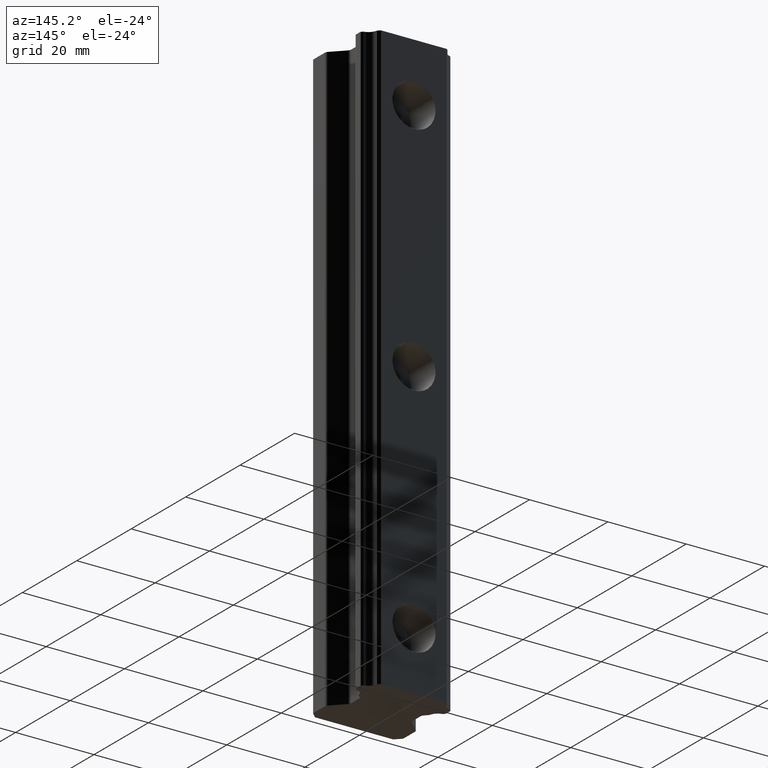
[diagram: clean part render]
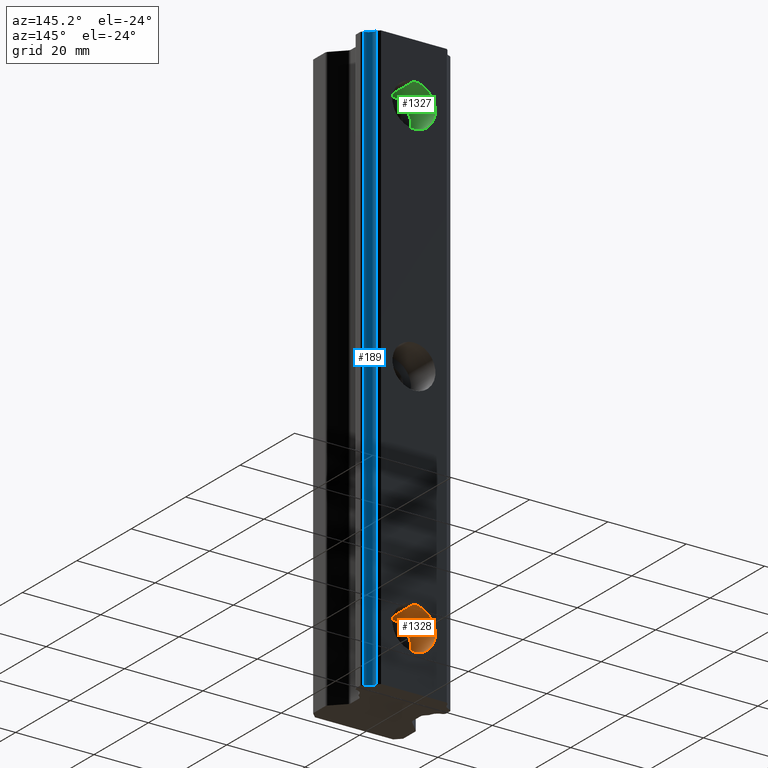
[diagram: same view with three faces highlighted in distinct colors, each labeled with its STEP entity id]
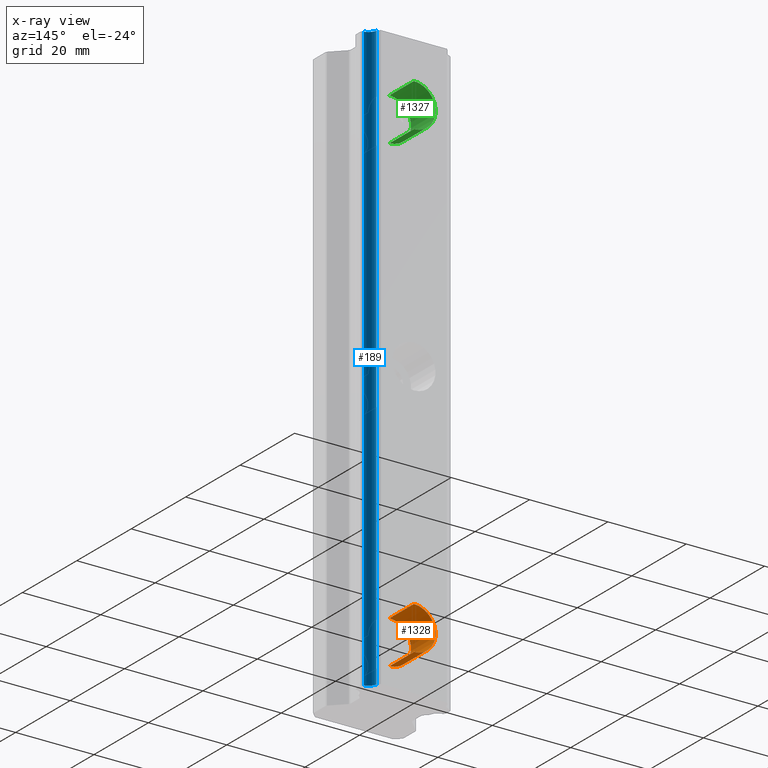
[diagram: x-ray of the same camera — body ghosted, the three highlighted faces saturated]
A machine part, auxiliary view with three faces highlighted in distinct colors.
The next image is the same camera in x-ray (body ghosted, the three faces saturated) — at least one of them is partly hidden behind the body in this view.
Their STEP definitions:

[orange] entity #1328 — the highlighted cylindrical surface (edge-blend (fillet) strip) has radius 5.5 mm, axis along (0, 1, 0).
#122 = CIRCLE ( 'NONE', #132, 5.499999999999998200 ) ;
#125 = DIRECTION ( 'NONE',  ( 0.0000000000000000000, 1.000000000000000000, 0.0000000000000000000 ) ) ;
#130 = DIRECTION ( 'NONE',  ( 0.0000000000000000000, 0.0000000000000000000, 1.000000000000000000 ) ) ;
#132 = AXIS2_PLACEMENT_3D ( 'NONE', #133, #125, #130 ) ;
#133 = CARTESIAN_POINT ( 'NONE',  ( 0.0000000000000000000, -9.000000000000001800, -60.00000000000000000 ) ) ;
#136 = ORIENTED_EDGE ( 'NONE', *, *, #144, .T. ) ;
#144 = EDGE_CURVE ( 'NONE', #1315, #1352, #713, .T. ) ;
#710 = DIRECTION ( 'NONE',  ( 0.0000000000000000000, 1.000000000000000000, 0.0000000000000000000 ) ) ;
#711 = VECTOR ( 'NONE', #710, 1000.000000000000000 ) ;
#712 = CARTESIAN_POINT ( 'NONE',  ( 6.735557395310442000E-016, 0.0000000000000000000, -65.50000000000000000 ) ) ;
#713 = LINE ( 'NONE', #712, #711 ) ;
#1311 = ORIENTED_EDGE ( 'NONE', *, *, #1410, .F. ) ;
#1315 = VERTEX_POINT ( 'NONE', #1604 ) ;
#1316 = ORIENTED_EDGE ( 'NONE', *, *, #1353, .F. ) ;
#1321 = EDGE_LOOP ( 'NONE', ( #1316, #136, #1323, #1311 ) ) ;
#1323 = ORIENTED_EDGE ( 'NONE', *, *, #1341, .F. ) ;
#1328 = ADVANCED_FACE ( 'NONE', ( #1583 ), #1641, .F. ) ;
#1339 = VERTEX_POINT ( 'NONE', #1666 ) ;
#1341 = EDGE_CURVE ( 'NONE', #1339, #1352, #1665, .T. ) ;
#1345 = VERTEX_POINT ( 'NONE', #1652 ) ;
#1352 = VERTEX_POINT ( 'NONE', #1642 ) ;
#1353 = EDGE_CURVE ( 'NONE', #1315, #1345, #122, .T. ) ;
#1410 = EDGE_CURVE ( 'NONE', #1345, #1339, #1782, .T. ) ;
#1583 = FACE_OUTER_BOUND ( 'NONE', #1321, .T. ) ;
#1604 = CARTESIAN_POINT ( 'NONE',  ( 6.735557395310435100E-016, -9.000000000000001800, -65.50000000000000000 ) ) ;
#1636 = DIRECTION ( 'NONE',  ( 0.0000000000000000000, 0.0000000000000000000, 1.000000000000000000 ) ) ;
#1637 = DIRECTION ( 'NONE',  ( 0.0000000000000000000, 1.000000000000000000, 0.0000000000000000000 ) ) ;
#1638 = CARTESIAN_POINT ( 'NONE',  ( 0.0000000000000000000, 0.0000000000000000000, -60.00000000000000000 ) ) ;
#1639 = AXIS2_PLACEMENT_3D ( 'NONE', #1638, #1637, #1636 ) ;
#1641 = CYLINDRICAL_SURFACE ( 'NONE', #1639, 5.499999999999998200 ) ;
#1642 = CARTESIAN_POINT ( 'NONE',  ( 6.735557395310435100E-016, 0.0000000000000000000, -65.50000000000000000 ) ) ;
#1652 = CARTESIAN_POINT ( 'NONE',  ( 0.0000000000000000000, -9.000000000000001800, -54.50000000000000000 ) ) ;
#1661 = DIRECTION ( 'NONE',  ( 0.0000000000000000000, 0.0000000000000000000, 1.000000000000000000 ) ) ;
#1662 = DIRECTION ( 'NONE',  ( 0.0000000000000000000, -1.000000000000000000, 0.0000000000000000000 ) ) ;
#1663 = CARTESIAN_POINT ( 'NONE',  ( 0.0000000000000000000, 0.0000000000000000000, -60.00000000000000000 ) ) ;
#1664 = AXIS2_PLACEMENT_3D ( 'NONE', #1663, #1662, #1661 ) ;
#1665 = CIRCLE ( 'NONE', #1664, 5.499999999999998200 ) ;
#1666 = CARTESIAN_POINT ( 'NONE',  ( 0.0000000000000000000, 0.0000000000000000000, -54.50000000000000000 ) ) ;
#1779 = DIRECTION ( 'NONE',  ( 0.0000000000000000000, 1.000000000000000000, 0.0000000000000000000 ) ) ;
#1780 = VECTOR ( 'NONE', #1779, 1000.000000000000000 ) ;
#1781 = CARTESIAN_POINT ( 'NONE',  ( 0.0000000000000000000, 0.0000000000000000000, -54.50000000000000000 ) ) ;
#1782 = LINE ( 'NONE', #1781, #1780 ) ;

[blue] entity #189 — the highlighted cylindrical surface (edge-blend (fillet) strip) has radius 2.43 mm, axis along (0, 0, 1).
#189 = ADVANCED_FACE ( 'NONE', ( #818 ), #817, .F. ) ;
#190 = EDGE_CURVE ( 'NONE', #393, #398, #816, .T. ) ;
#192 = EDGE_CURVE ( 'NONE', #386, #332, #806, .T. ) ;
#194 = ORIENTED_EDGE ( 'NONE', *, *, #192, .T. ) ;
#195 = ORIENTED_EDGE ( 'NONE', *, *, #392, .F. ) ;
#196 = ORIENTED_EDGE ( 'NONE', *, *, #190, .F. ) ;
#197 = EDGE_LOOP ( 'NONE', ( #196, #195, #194, #213 ) ) ;
#213 = ORIENTED_EDGE ( 'NONE', *, *, #331, .F. ) ;
#331 = EDGE_CURVE ( 'NONE', #398, #332, #1076, .T. ) ;
#332 = VERTEX_POINT ( 'NONE', #1072 ) ;
#386 = VERTEX_POINT ( 'NONE', #1158 ) ;
#392 = EDGE_CURVE ( 'NONE', #386, #393, #1157, .T. ) ;
#393 = VERTEX_POINT ( 'NONE', #1148 ) ;
#398 = VERTEX_POINT ( 'NONE', #1199 ) ;
#802 = DIRECTION ( 'NONE',  ( 1.000000000000000000, 0.0000000000000000000, 0.0000000000000000000 ) ) ;
#803 = DIRECTION ( 'NONE',  ( 0.0000000000000000000, 0.0000000000000000000, -1.000000000000000000 ) ) ;
#804 = CARTESIAN_POINT ( 'NONE',  ( 11.44706701449000100, -0.2575229855059000300, -75.00000000000000000 ) ) ;
#805 = AXIS2_PLACEMENT_3D ( 'NONE', #804, #803, #802 ) ;
#806 = CIRCLE ( 'NONE', #805, 2.429999999999999700 ) ;
#808 = DIRECTION ( 'NONE',  ( 1.000000000000000000, 0.0000000000000000000, 0.0000000000000000000 ) ) ;
#809 = DIRECTION ( 'NONE',  ( 0.0000000000000000000, 0.0000000000000000000, -1.000000000000000000 ) ) ;
#810 = CARTESIAN_POINT ( 'NONE',  ( 11.44706701449000100, -0.2575229855059000300, 75.00000000000000000 ) ) ;
#811 = AXIS2_PLACEMENT_3D ( 'NONE', #810, #809, #808 ) ;
#812 = DIRECTION ( 'NONE',  ( 1.000000000000000000, 0.0000000000000000000, 0.0000000000000000000 ) ) ;
#813 = DIRECTION ( 'NONE',  ( 0.0000000000000000000, 0.0000000000000000000, 1.000000000000000000 ) ) ;
#814 = CARTESIAN_POINT ( 'NONE',  ( 11.44706701449000100, -0.2575229855059000300, -75.00000000000000000 ) ) ;
#815 = AXIS2_PLACEMENT_3D ( 'NONE', #814, #813, #812 ) ;
#816 = CIRCLE ( 'NONE', #811, 2.429999999999999700 ) ;
#817 = CYLINDRICAL_SURFACE ( 'NONE', #815, 2.429999999999999700 ) ;
#818 = FACE_OUTER_BOUND ( 'NONE', #197, .T. ) ;
#1072 = CARTESIAN_POINT ( 'NONE',  ( 9.073084848086551800, -0.7762798394812562300, -75.00000000000000000 ) ) ;
#1073 = DIRECTION ( 'NONE',  ( 0.0000000000000000000, 0.0000000000000000000, -1.000000000000000000 ) ) ;
#1074 = VECTOR ( 'NONE', #1073, 1000.000000000000000 ) ;
#1075 = CARTESIAN_POINT ( 'NONE',  ( 9.073084848169003200, -0.7762798399086732200, -75.00000000000000000 ) ) ;
#1076 = LINE ( 'NONE', #1075, #1074 ) ;
#1148 = CARTESIAN_POINT ( 'NONE',  ( 10.92831016050967600, -2.631505151910150900, 75.00000000000000000 ) ) ;
#1149 = DIRECTION ( 'NONE',  ( 0.0000000000000000000, 0.0000000000000000000, 1.000000000000000000 ) ) ;
#1150 = VECTOR ( 'NONE', #1149, 1000.000000000000000 ) ;
#1151 = CARTESIAN_POINT ( 'NONE',  ( 10.92831016007618100, -2.631505151824484700, -75.00000000000000000 ) ) ;
#1157 = LINE ( 'NONE', #1151, #1150 ) ;
#1158 = CARTESIAN_POINT ( 'NONE',  ( 10.92831016050967600, -2.631505151910150900, -75.00000000000000000 ) ) ;
#1199 = CARTESIAN_POINT ( 'NONE',  ( 9.073084848086551800, -0.7762798394812562300, 75.00000000000000000 ) ) ;

[green] entity #1327 — the highlighted cylindrical surface (edge-blend (fillet) strip) has radius 5.5 mm, axis along (0, 1, 0).
#1307 = EDGE_LOOP ( 'NONE', ( #1310, #1349, #1351, #1314 ) ) ;
#1310 = ORIENTED_EDGE ( 'NONE', *, *, #1330, .F. ) ;
#1314 = ORIENTED_EDGE ( 'NONE', *, *, #1336, .F. ) ;
#1317 = VERTEX_POINT ( 'NONE', #1603 ) ;
#1318 = VERTEX_POINT ( 'NONE', #1602 ) ;
#1324 = EDGE_CURVE ( 'NONE', #1317, #1415, #1597, .T. ) ;
#1325 = EDGE_CURVE ( 'NONE', #1318, #1415, #1592, .T. ) ;
#1327 = ADVANCED_FACE ( 'NONE', ( #1584 ), #1582, .F. ) ;
#1330 = EDGE_CURVE ( 'NONE', #1318, #1334, #1635, .T. ) ;
#1334 = VERTEX_POINT ( 'NONE', #1615 ) ;
#1336 = EDGE_CURVE ( 'NONE', #1334, #1317, #1670, .T. ) ;
#1349 = ORIENTED_EDGE ( 'NONE', *, *, #1325, .T. ) ;
#1351 = ORIENTED_EDGE ( 'NONE', *, *, #1324, .F. ) ;
#1415 = VERTEX_POINT ( 'NONE', #1776 ) ;
#1578 = DIRECTION ( 'NONE',  ( 0.0000000000000000000, 0.0000000000000000000, 1.000000000000000000 ) ) ;
#1579 = DIRECTION ( 'NONE',  ( 0.0000000000000000000, 1.000000000000000000, 0.0000000000000000000 ) ) ;
#1580 = CARTESIAN_POINT ( 'NONE',  ( 0.0000000000000000000, 0.0000000000000000000, 60.00000000000000000 ) ) ;
#1581 = AXIS2_PLACEMENT_3D ( 'NONE', #1580, #1579, #1578 ) ;
#1582 = CYLINDRICAL_SURFACE ( 'NONE', #1581, 5.500000000000005300 ) ;
#1584 = FACE_OUTER_BOUND ( 'NONE', #1307, .T. ) ;
#1589 = DIRECTION ( 'NONE',  ( 0.0000000000000000000, 1.000000000000000000, 0.0000000000000000000 ) ) ;
#1590 = VECTOR ( 'NONE', #1589, 1000.000000000000000 ) ;
#1591 = CARTESIAN_POINT ( 'NONE',  ( 6.735557395310442000E-016, 0.0000000000000000000, 54.50000000000000000 ) ) ;
#1592 = LINE ( 'NONE', #1591, #1590 ) ;
#1593 = DIRECTION ( 'NONE',  ( 0.0000000000000000000, 0.0000000000000000000, 1.000000000000000000 ) ) ;
#1594 = DIRECTION ( 'NONE',  ( 0.0000000000000000000, -1.000000000000000000, 0.0000000000000000000 ) ) ;
#1595 = CARTESIAN_POINT ( 'NONE',  ( 0.0000000000000000000, 0.0000000000000000000, 60.00000000000000000 ) ) ;
#1596 = AXIS2_PLACEMENT_3D ( 'NONE', #1595, #1594, #1593 ) ;
#1597 = CIRCLE ( 'NONE', #1596, 5.500000000000005300 ) ;
#1602 = CARTESIAN_POINT ( 'NONE',  ( 6.735557395310444000E-016, -9.000000000000001800, 54.50000000000000000 ) ) ;
#1603 = CARTESIAN_POINT ( 'NONE',  ( 0.0000000000000000000, 0.0000000000000000000, 65.50000000000000000 ) ) ;
#1615 = CARTESIAN_POINT ( 'NONE',  ( 0.0000000000000000000, -9.000000000000001800, 65.50000000000000000 ) ) ;
#1632 = DIRECTION ( 'NONE',  ( 0.0000000000000000000, 0.0000000000000000000, 1.000000000000000000 ) ) ;
#1633 = DIRECTION ( 'NONE',  ( 0.0000000000000000000, 1.000000000000000000, 0.0000000000000000000 ) ) ;
#1634 = AXIS2_PLACEMENT_3D ( 'NONE', #1640, #1633, #1632 ) ;
#1635 = CIRCLE ( 'NONE', #1634, 5.500000000000005300 ) ;
#1640 = CARTESIAN_POINT ( 'NONE',  ( 0.0000000000000000000, -9.000000000000001800, 60.00000000000000000 ) ) ;
#1667 = DIRECTION ( 'NONE',  ( 0.0000000000000000000, 1.000000000000000000, 0.0000000000000000000 ) ) ;
#1668 = VECTOR ( 'NONE', #1667, 1000.000000000000000 ) ;
#1669 = CARTESIAN_POINT ( 'NONE',  ( 0.0000000000000000000, 0.0000000000000000000, 65.50000000000000000 ) ) ;
#1670 = LINE ( 'NONE', #1669, #1668 ) ;
#1776 = CARTESIAN_POINT ( 'NONE',  ( 6.735557395310444000E-016, 0.0000000000000000000, 54.50000000000000000 ) ) ;